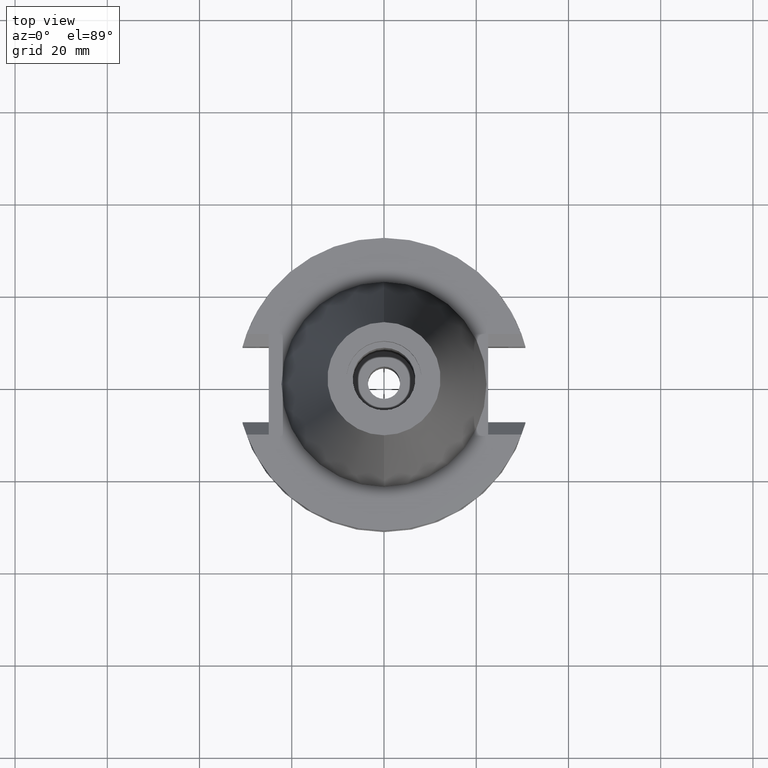
[diagram: clean part render]
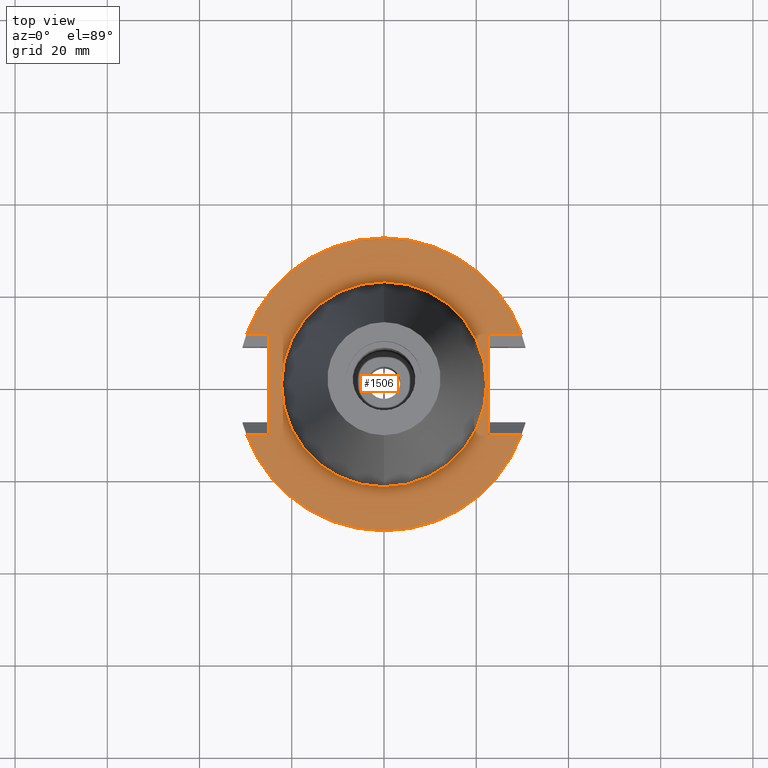
[diagram: same view with one face highlighted and labeled with its STEP entity id]
A machine part, top view. The second image highlights one B-rep face of the part: STEP entity #1506.
In plain terms, the highlighted planar face has unit normal (0, 0, 1).
Its self-contained STEP definition (entity closure, byte-faithful):
#62=DIRECTION('',(0.E0,-1.E0,0.E0));
#63=VECTOR('',#62,2.178E1);
#64=CARTESIAN_POINT('',(2.257E1,1.089E1,-1.E0));
#65=LINE('',#64,#63);
#69=DIRECTION('',(1.E0,5.877118954908E-14,0.E0));
#70=VECTOR('',#69,7.253990343348E0);
#71=CARTESIAN_POINT('',(2.257E1,-1.089E1,-1.E0));
#72=LINE('',#71,#70);
#76=CARTESIAN_POINT('',(0.E0,0.E0,-1.E0));
#77=DIRECTION('',(0.E0,0.E0,-1.E0));
#78=DIRECTION('',(9.393382785306E-1,-3.429921259843E-1,0.E0));
#79=AXIS2_PLACEMENT_3D('',#76,#77,#78);
#84=CARTESIAN_POINT('',(0.E0,0.E0,-1.E0));
#85=DIRECTION('',(0.E0,0.E0,-1.E0));
#86=DIRECTION('',(0.E0,-1.E0,0.E0));
#87=AXIS2_PLACEMENT_3D('',#84,#85,#86);
#92=DIRECTION('',(-1.E0,-8.801124924651E-14,0.E0));
#93=VECTOR('',#92,4.843990343348E0);
#94=CARTESIAN_POINT('',(-2.498E1,1.089E1,-1.E0));
#95=LINE('',#94,#93);
#99=CARTESIAN_POINT('',(0.E0,0.E0,-1.E0));
#100=DIRECTION('',(0.E0,0.E0,-1.E0));
#101=DIRECTION('',(-9.393382785306E-1,3.429921259843E-1,0.E0));
#102=AXIS2_PLACEMENT_3D('',#99,#100,#101);
#107=CARTESIAN_POINT('',(0.E0,0.E0,-1.E0));
#108=DIRECTION('',(0.E0,0.E0,-1.E0));
#109=DIRECTION('',(0.E0,1.E0,0.E0));
#110=AXIS2_PLACEMENT_3D('',#107,#108,#109);
#115=CARTESIAN_POINT('',(0.E0,0.E0,-9.999999999999E-1));
#116=DIRECTION('',(0.E0,0.E0,1.E0));
#117=DIRECTION('',(0.E0,-1.E0,0.E0));
#118=AXIS2_PLACEMENT_3D('',#115,#116,#117);
#123=CARTESIAN_POINT('',(0.E0,0.E0,-9.999999999999E-1));
#124=DIRECTION('',(0.E0,0.E0,1.E0));
#125=DIRECTION('',(0.E0,1.E0,0.E0));
#126=AXIS2_PLACEMENT_3D('',#123,#124,#125);
#267=DIRECTION('',(1.E0,-5.828142963617E-14,0.E0));
#268=VECTOR('',#267,7.253990343348E0);
#269=CARTESIAN_POINT('',(2.257E1,1.089E1,-1.E0));
#270=LINE('',#269,#268);
#303=DIRECTION('',(0.E0,-1.E0,0.E0));
#304=VECTOR('',#303,2.178E1);
#305=CARTESIAN_POINT('',(-2.498E1,1.089E1,-1.E0));
#306=LINE('',#305,#304);
#544=DIRECTION('',(-1.E0,8.801124924651E-14,0.E0));
#545=VECTOR('',#544,4.843990343348E0);
#546=CARTESIAN_POINT('',(-2.498E1,-1.089E1,-1.E0));
#547=LINE('',#546,#545);
#1220=CARTESIAN_POINT('',(0.E0,2.2225E1,-1.E0));
#1221=VERTEX_POINT('',#1220);
#1222=CARTESIAN_POINT('',(0.E0,-2.2225E1,-9.999999999999E-1));
#1223=VERTEX_POINT('',#1222);
#1224=CARTESIAN_POINT('',(2.257E1,1.089E1,-1.E0));
#1225=CARTESIAN_POINT('',(2.257E1,-1.089E1,-1.E0));
#1226=VERTEX_POINT('',#1224);
#1227=VERTEX_POINT('',#1225);
#1228=CARTESIAN_POINT('',(2.982399034335E1,-1.089E1,-1.E0));
#1229=VERTEX_POINT('',#1228);
#1230=CARTESIAN_POINT('',(0.E0,-3.175E1,-1.E0));
#1231=CARTESIAN_POINT('',(-2.982399034335E1,-1.089E1,-1.E0));
#1232=VERTEX_POINT('',#1230);
#1233=VERTEX_POINT('',#1231);
#1234=CARTESIAN_POINT('',(-2.498E1,-1.089E1,-1.E0));
#1235=VERTEX_POINT('',#1234);
#1236=CARTESIAN_POINT('',(-2.498E1,1.089E1,-1.E0));
#1237=VERTEX_POINT('',#1236);
#1238=CARTESIAN_POINT('',(-2.982399034335E1,1.089E1,-1.E0));
#1239=VERTEX_POINT('',#1238);
#1240=CARTESIAN_POINT('',(0.E0,3.175E1,-1.E0));
#1241=CARTESIAN_POINT('',(2.982399034335E1,1.089E1,-1.E0));
#1242=VERTEX_POINT('',#1240);
#1243=VERTEX_POINT('',#1241);
#1475=CARTESIAN_POINT('',(0.E0,0.E0,-1.E0));
#1476=DIRECTION('',(0.E0,0.E0,1.E0));
#1477=DIRECTION('',(0.E0,1.E0,0.E0));
#1478=AXIS2_PLACEMENT_3D('',#1475,#1476,#1477);
#1479=PLANE('',#1478);
#1481=ORIENTED_EDGE('',*,*,#1480,.T.);
#1483=ORIENTED_EDGE('',*,*,#1482,.T.);
#1485=ORIENTED_EDGE('',*,*,#1484,.T.);
#1487=ORIENTED_EDGE('',*,*,#1486,.T.);
#1489=ORIENTED_EDGE('',*,*,#1488,.F.);
#1491=ORIENTED_EDGE('',*,*,#1490,.F.);
#1493=ORIENTED_EDGE('',*,*,#1492,.T.);
#1495=ORIENTED_EDGE('',*,*,#1494,.T.);
#1497=ORIENTED_EDGE('',*,*,#1496,.T.);
#1499=ORIENTED_EDGE('',*,*,#1498,.F.);
#1500=EDGE_LOOP('',(#1481,#1483,#1485,#1487,#1489,#1491,#1493,#1495,#1497,
#1499));
#1501=FACE_OUTER_BOUND('',#1500,.F.);
#1502=ORIENTED_EDGE('',*,*,#1454,.T.);
#1503=ORIENTED_EDGE('',*,*,#1470,.T.);
#1504=EDGE_LOOP('',(#1502,#1503));
#1505=FACE_BOUND('',#1504,.F.);
#80=CIRCLE('',#79,3.175E1);
#88=CIRCLE('',#87,3.175E1);
#103=CIRCLE('',#102,3.175E1);
#111=CIRCLE('',#110,3.175E1);
#119=CIRCLE('',#118,2.2225E1);
#127=CIRCLE('',#126,2.2225E1);
#1454=EDGE_CURVE('',#1223,#1221,#119,.T.);
#1470=EDGE_CURVE('',#1221,#1223,#127,.T.);
#1480=EDGE_CURVE('',#1226,#1227,#65,.T.);
#1482=EDGE_CURVE('',#1227,#1229,#72,.T.);
#1484=EDGE_CURVE('',#1229,#1232,#80,.T.);
#1486=EDGE_CURVE('',#1232,#1233,#88,.T.);
#1488=EDGE_CURVE('',#1235,#1233,#547,.T.);
#1490=EDGE_CURVE('',#1237,#1235,#306,.T.);
#1492=EDGE_CURVE('',#1237,#1239,#95,.T.);
#1494=EDGE_CURVE('',#1239,#1242,#103,.T.);
#1496=EDGE_CURVE('',#1242,#1243,#111,.T.);
#1498=EDGE_CURVE('',#1226,#1243,#270,.T.);
#1506=ADVANCED_FACE('',(#1501,#1505),#1479,.T.);